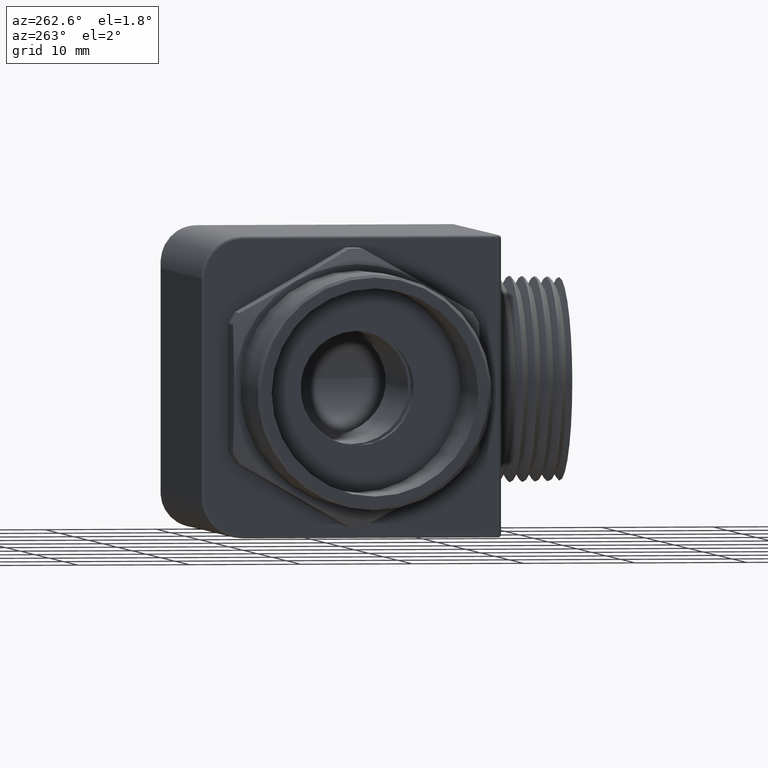
[diagram: clean part render]
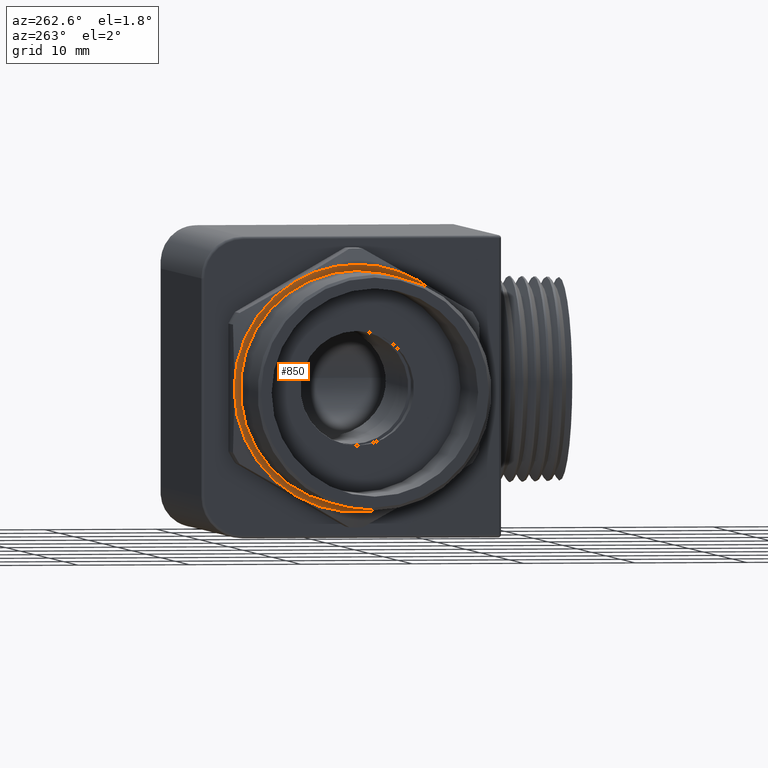
[diagram: same view with one face highlighted and labeled with its STEP entity id]
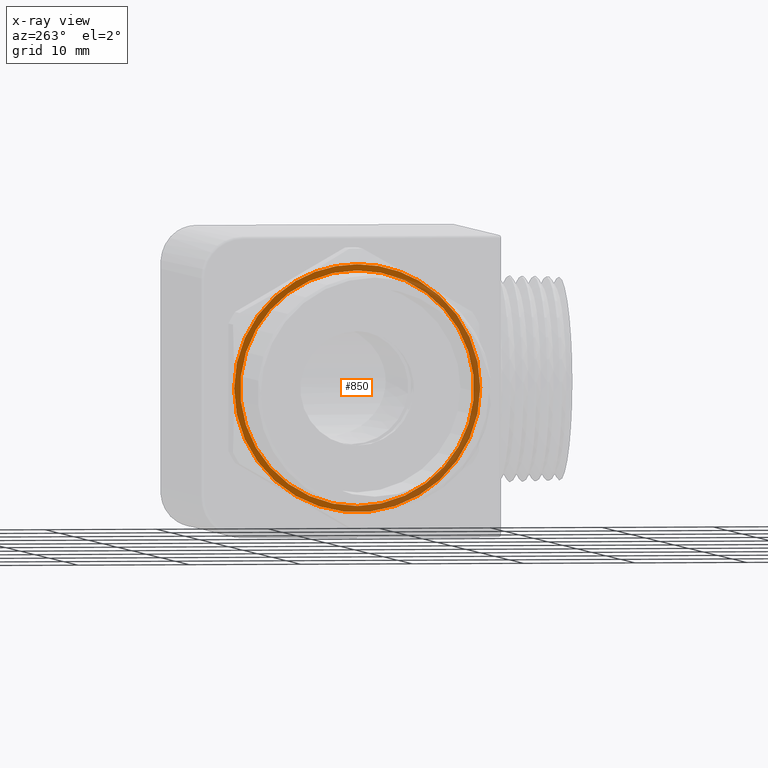
[diagram: x-ray of the same camera — body ghosted, the highlighted face saturated]
A machine part, auxiliary view. The second image highlights one B-rep face of the part: STEP entity #850.
The next image is the same camera in x-ray: the body ghosted, the highlighted face saturated — about 42% of this face is hidden behind the body in this view.
In plain terms, the highlighted planar face has unit normal (1, 0, 0).
Its self-contained STEP definition (entity closure, byte-faithful):
#642 = VERTEX_POINT ( 'NONE', #2375 ) ;
#643 = VERTEX_POINT ( 'NONE', #2436 ) ;
#657 = EDGE_CURVE ( 'NONE', #658, #659, #2413, .T. ) ;
#658 = VERTEX_POINT ( 'NONE', #2408 ) ;
#659 = VERTEX_POINT ( 'NONE', #2407 ) ;
#671 = EDGE_CURVE ( 'NONE', #642, #643, #2447, .T. ) ;
#839 = VERTEX_POINT ( 'NONE', #2847 ) ;
#850 = ADVANCED_FACE ( 'NONE', ( #2825, #2824 ), #2887, .F. ) ;
#851 = EDGE_LOOP ( 'NONE', ( #852, #853 ) ) ;
#852 = ORIENTED_EDGE ( 'NONE', *, *, #671, .F. ) ;
#853 = ORIENTED_EDGE ( 'NONE', *, *, #910, .F. ) ;
#854 = EDGE_LOOP ( 'NONE', ( #911, #915, #918, #921, #896, #898, #899 ) ) ;
#896 = ORIENTED_EDGE ( 'NONE', *, *, #897, .T. ) ;
#897 = EDGE_CURVE ( 'NONE', #839, #658, #2926, .T. ) ;
#898 = ORIENTED_EDGE ( 'NONE', *, *, #657, .T. ) ;
#899 = ORIENTED_EDGE ( 'NONE', *, *, #900, .T. ) ;
#900 = EDGE_CURVE ( 'NONE', #659, #913, #2921, .T. ) ;
#910 = EDGE_CURVE ( 'NONE', #643, #642, #2958, .T. ) ;
#911 = ORIENTED_EDGE ( 'NONE', *, *, #912, .T. ) ;
#912 = EDGE_CURVE ( 'NONE', #913, #914, #2953, .T. ) ;
#913 = VERTEX_POINT ( 'NONE', #2949 ) ;
#914 = VERTEX_POINT ( 'NONE', #2948 ) ;
#915 = ORIENTED_EDGE ( 'NONE', *, *, #916, .T. ) ;
#916 = EDGE_CURVE ( 'NONE', #914, #917, #2947, .T. ) ;
#917 = VERTEX_POINT ( 'NONE', #3007 ) ;
#918 = ORIENTED_EDGE ( 'NONE', *, *, #919, .T. ) ;
#919 = EDGE_CURVE ( 'NONE', #917, #920, #3002, .T. ) ;
#920 = VERTEX_POINT ( 'NONE', #2997 ) ;
#921 = ORIENTED_EDGE ( 'NONE', *, *, #922, .T. ) ;
#922 = EDGE_CURVE ( 'NONE', #920, #839, #2996, .T. ) ;
#2375 = CARTESIAN_POINT ( 'NONE',  ( -0.4649999999999997500, 0.0000000000000000000, 0.4132500000000001700 ) ) ;
#2407 = CARTESIAN_POINT ( 'NONE',  ( -0.4649999999999998000, 0.2174999999999998900, 0.3767210506462309600 ) ) ;
#2408 = CARTESIAN_POINT ( 'NONE',  ( -0.4649999999999998000, 0.0000000000000000000, 0.4349999999999999400 ) ) ;
#2409 = DIRECTION ( 'NONE',  ( 0.0000000000000000000, 0.0000000000000000000, 1.000000000000000000 ) ) ;
#2410 = DIRECTION ( 'NONE',  ( -1.000000000000000000, 0.0000000000000000000, 0.0000000000000000000 ) ) ;
#2411 = CARTESIAN_POINT ( 'NONE',  ( -0.4649999999999998000, 0.0000000000000000000, 0.0000000000000000000 ) ) ;
#2412 = AXIS2_PLACEMENT_3D ( 'NONE', #2411, #2410, #2409 ) ;
#2413 = CIRCLE ( 'NONE', #2412, 0.4349999999999999400 ) ;
#2436 = CARTESIAN_POINT ( 'NONE',  ( -0.4649999999999997500, 5.060852897476437900E-017, -0.4132500000000001200 ) ) ;
#2441 = DIRECTION ( 'NONE',  ( 0.0000000000000000000, 0.0000000000000000000, 1.000000000000000000 ) ) ;
#2442 = DIRECTION ( 'NONE',  ( -1.000000000000000000, 0.0000000000000000000, 0.0000000000000000000 ) ) ;
#2443 = CARTESIAN_POINT ( 'NONE',  ( -0.4649999999999997500, 0.0000000000000000000, 0.0000000000000000000 ) ) ;
#2444 = AXIS2_PLACEMENT_3D ( 'NONE', #2443, #2442, #2441 ) ;
#2447 = CIRCLE ( 'NONE', #2444, 0.4132500000000001700 ) ;
#2824 = FACE_OUTER_BOUND ( 'NONE', #854, .T. ) ;
#2825 = FACE_BOUND ( 'NONE', #851, .T. ) ;
#2847 = CARTESIAN_POINT ( 'NONE',  ( -0.4649999999999998000, -0.2174999999999999400, 0.3767210506462306800 ) ) ;
#2883 = DIRECTION ( 'NONE',  ( 0.0000000000000000000, 0.0000000000000000000, -1.000000000000000000 ) ) ;
#2884 = DIRECTION ( 'NONE',  ( 1.000000000000000000, 0.0000000000000000000, 0.0000000000000000000 ) ) ;
#2885 = CARTESIAN_POINT ( 'NONE',  ( -0.4649999999999998000, 0.4893750000000000000, 0.0000000000000000000 ) ) ;
#2886 = AXIS2_PLACEMENT_3D ( 'NONE', #2885, #2884, #2883 ) ;
#2887 = PLANE ( 'NONE',  #2886 ) ;
#2918 = DIRECTION ( 'NONE',  ( -1.000000000000000000, 0.0000000000000000000, 0.0000000000000000000 ) ) ;
#2919 = CARTESIAN_POINT ( 'NONE',  ( -0.4649999999999998000, 0.0000000000000000000, 0.0000000000000000000 ) ) ;
#2920 = AXIS2_PLACEMENT_3D ( 'NONE', #2919, #2918, #2978 ) ;
#2921 = CIRCLE ( 'NONE', #2920, 0.4349999999999999400 ) ;
#2922 = DIRECTION ( 'NONE',  ( 0.0000000000000000000, 0.0000000000000000000, 1.000000000000000000 ) ) ;
#2923 = DIRECTION ( 'NONE',  ( -1.000000000000000000, 0.0000000000000000000, 0.0000000000000000000 ) ) ;
#2924 = CARTESIAN_POINT ( 'NONE',  ( -0.4649999999999998000, 0.0000000000000000000, 0.0000000000000000000 ) ) ;
#2925 = AXIS2_PLACEMENT_3D ( 'NONE', #2924, #2923, #2922 ) ;
#2926 = CIRCLE ( 'NONE', #2925, 0.4349999999999999400 ) ;
#2947 = CIRCLE ( 'NONE', #3006, 0.4349999999999999400 ) ;
#2948 = CARTESIAN_POINT ( 'NONE',  ( -0.4649999999999998000, 0.2175000000000002500, -0.3767210506462309600 ) ) ;
#2949 = CARTESIAN_POINT ( 'NONE',  ( -0.4649999999999998000, 0.4350000000000003900, 0.0000000000000000000 ) ) ;
#2950 = DIRECTION ( 'NONE',  ( 0.0000000000000000000, 0.0000000000000000000, 1.000000000000000000 ) ) ;
#2951 = DIRECTION ( 'NONE',  ( -1.000000000000000000, 0.0000000000000000000, 0.0000000000000000000 ) ) ;
#2952 = AXIS2_PLACEMENT_3D ( 'NONE', #2959, #2951, #2950 ) ;
#2953 = CIRCLE ( 'NONE', #2952, 0.4349999999999999400 ) ;
#2954 = DIRECTION ( 'NONE',  ( 0.0000000000000000000, 0.0000000000000000000, 1.000000000000000000 ) ) ;
#2955 = DIRECTION ( 'NONE',  ( -1.000000000000000000, 0.0000000000000000000, 0.0000000000000000000 ) ) ;
#2956 = CARTESIAN_POINT ( 'NONE',  ( -0.4649999999999997500, 0.0000000000000000000, 0.0000000000000000000 ) ) ;
#2957 = AXIS2_PLACEMENT_3D ( 'NONE', #2956, #2955, #2954 ) ;
#2958 = CIRCLE ( 'NONE', #2957, 0.4132500000000001700 ) ;
#2959 = CARTESIAN_POINT ( 'NONE',  ( -0.4649999999999998000, 0.0000000000000000000, 0.0000000000000000000 ) ) ;
#2978 = DIRECTION ( 'NONE',  ( 0.0000000000000000000, 0.0000000000000000000, 1.000000000000000000 ) ) ;
#2992 = DIRECTION ( 'NONE',  ( 0.0000000000000000000, 0.0000000000000000000, 1.000000000000000000 ) ) ;
#2993 = DIRECTION ( 'NONE',  ( -1.000000000000000000, 0.0000000000000000000, 0.0000000000000000000 ) ) ;
#2994 = CARTESIAN_POINT ( 'NONE',  ( -0.4649999999999998000, 0.0000000000000000000, 0.0000000000000000000 ) ) ;
#2995 = AXIS2_PLACEMENT_3D ( 'NONE', #2994, #2993, #2992 ) ;
#2996 = CIRCLE ( 'NONE', #2995, 0.4349999999999999400 ) ;
#2997 = CARTESIAN_POINT ( 'NONE',  ( -0.4649999999999998000, -0.4349999999999998900, 0.0000000000000000000 ) ) ;
#2998 = DIRECTION ( 'NONE',  ( 0.0000000000000000000, 0.0000000000000000000, 1.000000000000000000 ) ) ;
#2999 = DIRECTION ( 'NONE',  ( -1.000000000000000000, 0.0000000000000000000, 0.0000000000000000000 ) ) ;
#3000 = CARTESIAN_POINT ( 'NONE',  ( -0.4649999999999998000, 0.0000000000000000000, 0.0000000000000000000 ) ) ;
#3001 = AXIS2_PLACEMENT_3D ( 'NONE', #3000, #2999, #2998 ) ;
#3002 = CIRCLE ( 'NONE', #3001, 0.4349999999999999400 ) ;
#3003 = DIRECTION ( 'NONE',  ( 0.0000000000000000000, 0.0000000000000000000, 1.000000000000000000 ) ) ;
#3004 = DIRECTION ( 'NONE',  ( -1.000000000000000000, 0.0000000000000000000, 0.0000000000000000000 ) ) ;
#3005 = CARTESIAN_POINT ( 'NONE',  ( -0.4649999999999998000, 0.0000000000000000000, 0.0000000000000000000 ) ) ;
#3006 = AXIS2_PLACEMENT_3D ( 'NONE', #3005, #3004, #3003 ) ;
#3007 = CARTESIAN_POINT ( 'NONE',  ( -0.4649999999999998000, -0.2175000000000000300, -0.3767210506462308500 ) ) ;